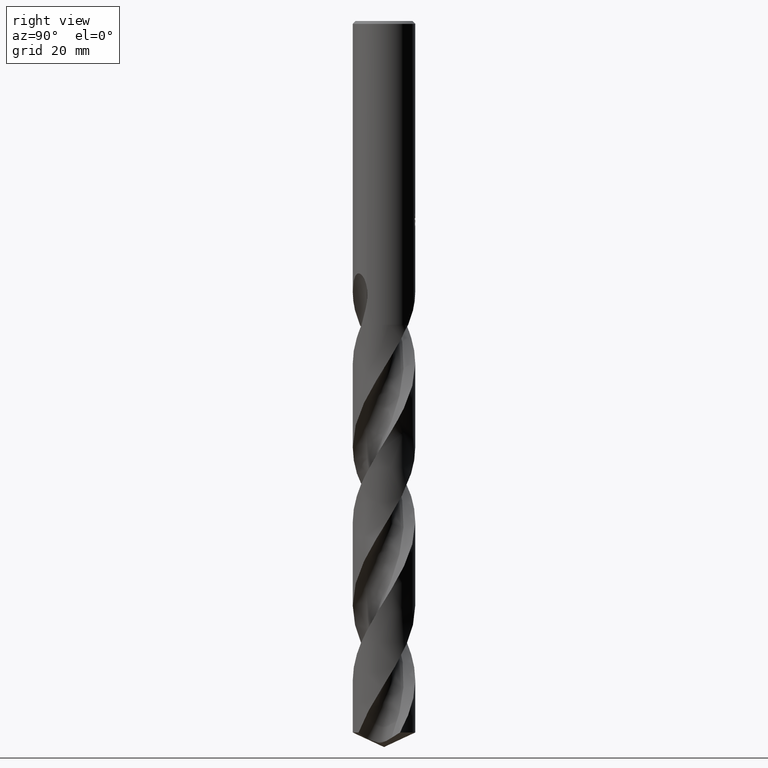
[diagram: clean part render]
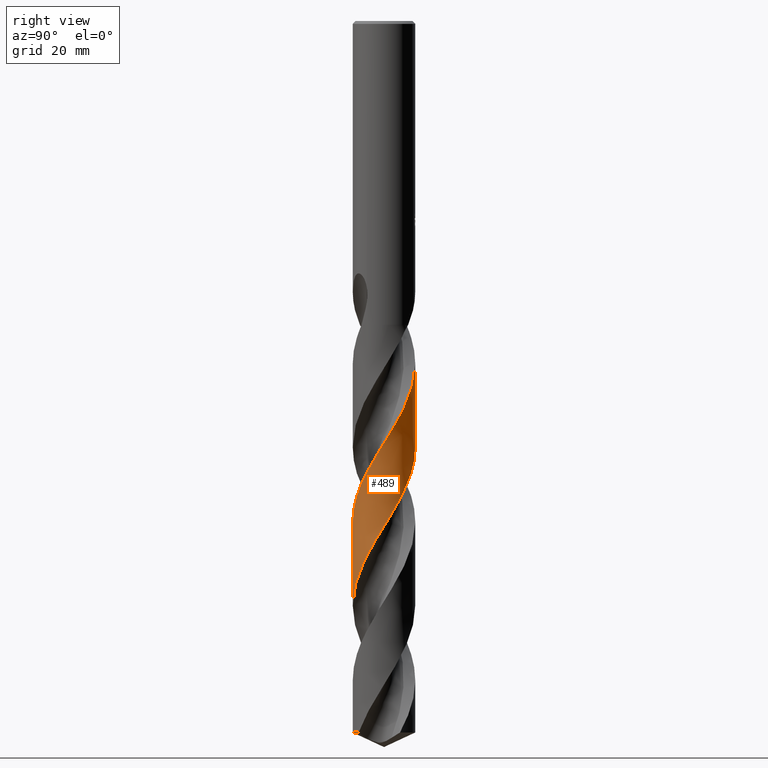
[diagram: same view with one face highlighted and labeled with its STEP entity id]
A machine part, right view. The second image highlights one B-rep face of the part: STEP entity #489.
In plain terms, the highlighted conical surface has half-angle 0 deg.
Its self-contained STEP definition (entity closure, byte-faithful):
#351=EDGE_CURVE('',#613,#685,#837,.T.);
#371=VERTEX_POINT('',#858);
#489=ADVANCED_FACE('',(#987),#988,.T.);
#563=EDGE_CURVE('',#707,#685,#1067,.T.);
#577=EDGE_CURVE('',#613,#371,#1082,.T.);
#613=VERTEX_POINT('',#1122);
#635=EDGE_CURVE('',#707,#371,#1147,.T.);
#685=VERTEX_POINT('',#1199);
#707=VERTEX_POINT('',#1223);
#837=B_SPLINE_CURVE_WITH_KNOTS('',3,(#2096,#2097,#2098,#2099,#2100,#2101,#2102,#2103,#2104,#2105,#2106,#2107,#2108,#2109,#2110,#2111,#2112,#2113,#2114,#2115,#2116,#2117,#2118,#2119,#2120,#2121,#2122,#2123,#2124,#2125,#2126,#2127,#2128,#2129,#2130,#2131,#2132,#2133,#2134,#2135,#2136,#2137,#2138,#2139,#2140,#2141,#2142,#2143,#2144,#2145,#2146,#2147,#2148,#2149,#2150,#2151,#2152,#2153,#2154,#2155,#2156,#2157,#2158,#2159,#2160,#2161,#2162,#2163,#2164,#2165,#2166,#2167,#2168,#2169,#2170,#2171,#2172,#2173,#2174,#2175,#2176,#2177,#2178,#2179,#2180,#2181,#2182,#2183,#2184,#2185,#2186,#2187,#2188,#2189,#2190,#2191,#2192,#2193,#2194,#2195,#2196,#2197,#2198,#2199,#2200,#2201,#2202,#2203,#2204,#2205,#2206,#2207,#2208,#2209,#2210,#2211,#2212,#2213,#2214,#2215,#2216,#2217,#2218,#2219,#2220,#2221,#2222,#2223,#2224,#2225,#2226,#2227,#2228,#2229,#2230,#2231,#2232,#2233,#2234,#2235,#2236,#2237,#2238,#2239,#2240,#2241,#2242,#2243,#2244,#2245,#2246,#2247,#2248,#2249,#2250,#2251,#2252,#2253),.UNSPECIFIED.,.F.,.F.,(4,2,2,2,2,2,2,2,2,2,2,2,2,2,2,2,2,2,2,2,2,2,2,2,2,2,2,2,2,2,2,2,2,2,2,2,2,2,2,2,2,2,2,2,2,2,2,2,2,2,2,2,2,2,2,2,2,2,2,2,2,2,2,2,2,2,2,2,2,2,2,2,2,2,2,2,2,2,4),(0.0,0.33079250803212,0.47388826276862,0.525126299226777,0.560457220997271,0.621862456829889,1.41913168242302,1.65246398237163,1.79168776453876,1.91557138446631,2.07175984837624,2.38634997627114,2.44822355900527,3.37165145099731,3.90930529366214,4.39123340762432,4.63767425564521,5.24841389897642,6.83965309799757,9.14841744682431,11.3629098963592,12.1507517249237,13.7017692926407,14.80832205884,17.0255939085607,18.1367226498274,20.3384720138087,21.4509537251053,22.5510916854605,24.4243922024361,26.6296174303579,27.7420284619005,28.8424078088941,30.6548529179135,32.8660755759365,33.9774977141512,36.1763218119235,37.2893434008521,38.3861128514043,40.3172545336863,41.4204086725534,43.1823510677158,43.7370772439113,44.7902620687031,46.9476584824271,47.9451157880602,50.0460970650543,51.1137369680455,53.2718497939801,54.2695762921687,56.579994957079,57.1562679229648,59.4634212333114,60.5565535683248,62.6612648061229,63.7250803679744,65.8794232170719,66.8792766262076,68.9781009482861,70.0473866655218,72.2040985870713,73.2022987365921,75.511953169869,76.088036202322,78.394423844435,79.4872039481365,81.5914374277203,82.5730727064379,84.4191000805045,86.0512246747107,87.4814311754534,88.1097031857498,88.6947312064875,90.8948347860314,92.5538813964964,93.8008787661073,94.2687722606396,95.0867701270505,97.5453496771807),.UNSPECIFIED.);
#858=CARTESIAN_POINT('',(7.42125690275208E-014,6.49993000508459,-88.6350102377183));
#987=FACE_OUTER_BOUND('',#5229,.T.);
#988=CONICAL_SURFACE('',#5230,6.49995,1.17967652960211E-006);
#1067=LINE('',#6197,#6198);
#1082=LINE('',#6221,#6222);
#1122=CARTESIAN_POINT('',(3.60238591493472E-015,6.49990953199373,-71.2801757833968));
#1147=B_SPLINE_CURVE_WITH_KNOTS('',3,(#6522,#6523,#6524,#6525,#6526,#6527,#6528,#6529,#6530,#6531,#6532,#6533,#6534,#6535,#6536,#6537,#6538,#6539,#6540,#6541,#6542,#6543,#6544,#6545,#6546,#6547,#6548,#6549,#6550,#6551,#6552,#6553,#6554,#6555,#6556,#6557,#6558,#6559,#6560,#6561,#6562,#6563,#6564,#6565,#6566,#6567,#6568,#6569,#6570,#6571,#6572,#6573,#6574,#6575,#6576,#6577,#6578,#6579,#6580,#6581,#6582,#6583,#6584,#6585,#6586,#6587,#6588,#6589,#6590,#6591,#6592,#6593,#6594,#6595,#6596,#6597,#6598,#6599,#6600,#6601,#6602,#6603,#6604,#6605,#6606,#6607,#6608,#6609,#6610,#6611,#6612,#6613,#6614,#6615,#6616,#6617,#6618,#6619,#6620,#6621,#6622,#6623,#6624,#6625,#6626,#6627,#6628,#6629,#6630,#6631,#6632,#6633,#6634,#6635,#6636,#6637,#6638,#6639,#6640,#6641,#6642,#6643,#6644,#6645,#6646,#6647,#6648,#6649,#6650,#6651,#6652,#6653,#6654,#6655,#6656,#6657,#6658,#6659,#6660,#6661,#6662,#6663,#6664,#6665),.UNSPECIFIED.,.F.,.F.,(4,2,2,2,2,2,2,2,2,2,2,2,2,2,2,2,2,2,2,2,2,2,2,2,2,2,2,2,2,2,2,2,2,2,2,2,2,2,2,2,2,2,2,2,2,2,2,2,2,2,2,2,2,2,2,2,2,2,2,2,2,2,2,2,2,2,2,2,2,2,2,4),(0.0,1.62132441846196,2.41007585636553,3.53007500042479,4.88741725184846,6.9039121955526,8.46617743514913,10.7296531993859,12.3443937262883,13.1133941374486,14.5625430527722,16.4256765496374,18.1228968380388,20.386472459647,21.5230164435783,23.1300389517819,24.7417095060267,26.349245855882,27.9610281157212,29.5686792314137,31.1805440823844,32.7881815592088,34.3999663194296,36.0081504266638,37.9026827310847,39.0301376192189,40.6186396593835,42.8847107138609,44.0212070359038,46.284035600863,47.4209194160412,48.5515026005488,50.1619188649125,50.9691729544409,51.7101604771442,54.4786402335096,54.6697036118996,57.749638430469,57.8458157502053,60.9617753238208,61.0616537588516,63.6722167746319,64.800921503958,66.248081252642,68.1406051696505,69.6614101797351,71.4158889193304,73.0416598020186,75.3064069046325,76.4434496395551,77.5753167245774,79.0302984244973,79.9357086929596,80.867709056088,82.4679536708044,84.2008766097862,86.8395977375489,86.8951964755862,90.2584483636107,92.8841602295508,94.6359893448057,95.1863823488813,95.9663162224129,96.9011824420138,97.3408759812528,97.3423029498683,97.4042507487023,97.448603977308,97.4943466382433,97.5630552236327,97.7025794578247,97.9233588608679),.UNSPECIFIED.);
#1199=CARTESIAN_POINT('',(1.46124231713493E-014,-6.49994837954793,-104.210859086855));
#1223=CARTESIAN_POINT('',(1.73383733930544E-015,-6.49996885319631,-121.566166142724));
#2096=CARTESIAN_POINT('',(-4.51793200972925,4.67300657415989,-63.205));
#2097=CARTESIAN_POINT('',(-4.47820924904769,4.7114112844519,-63.300422049613));
#2098=CARTESIAN_POINT('',(-4.43786501805923,4.74943903414382,-63.3958718407467));
#2099=CARTESIAN_POINT('',(-4.37898668517305,4.80351573840669,-63.532476277983));
#2100=CARTESIAN_POINT('',(-4.36108142964293,4.81977835733605,-63.5736751066633));
#2101=CARTESIAN_POINT('',(-4.33656123189556,4.84179912696366,-63.6295977255505));
#2102=CARTESIAN_POINT('',(-4.33007853952318,4.84759759899436,-63.6443361669632));
#2103=CARTESIAN_POINT('',(-4.31909384433874,4.85738320684318,-63.6692300332716));
#2104=CARTESIAN_POINT('',(-4.31460210335888,4.86137348958217,-63.6793869388249));
#2105=CARTESIAN_POINT('',(-4.30227903893947,4.87229022815813,-63.7071903066033));
#2106=CARTESIAN_POINT('',(-4.29443077154796,4.87920917654528,-63.7248292978437));
#2107=CARTESIAN_POINT('',(-4.1842909450226,4.9758343831775,-63.9713982047195));
#2108=CARTESIAN_POINT('',(-4.07951402505787,5.06221528933136,-64.1941356291011));
#2109=CARTESIAN_POINT('',(-3.93565935737802,5.1731031486729,-64.4854356771169));
#2110=CARTESIAN_POINT('',(-3.90276364015396,5.19796824183501,-64.5511547265547));
#2111=CARTESIAN_POINT('',(-3.84960149128962,5.23735639798783,-64.6560971068889));
#2112=CARTESIAN_POINT('',(-3.82961953549288,5.25198561642253,-64.6952634213648));
#2113=CARTESIAN_POINT('',(-3.79162310038691,5.27947022753001,-64.7692639294865));
#2114=CARTESIAN_POINT('',(-3.77364715488711,5.29233423592421,-64.804075198461));
#2115=CARTESIAN_POINT('',(-3.7328058206962,5.3212465872423,-64.8827659197748));
#2116=CARTESIAN_POINT('',(-3.7099070096625,5.33723693018766,-64.9266057541671));
#2117=CARTESIAN_POINT('',(-3.64050816352316,5.3850347823305,-65.0587645377703));
#2118=CARTESIAN_POINT('',(-3.59375797977791,5.41634534760756,-65.1468459401489));
#2119=CARTESIAN_POINT('',(-3.53735356603684,5.45307102537567,-65.2524922200646));
#2120=CARTESIAN_POINT('',(-3.52797518725493,5.45914376094757,-65.270038618721));
#2121=CARTESIAN_POINT('',(-3.3766257125512,5.55658114882703,-65.5531810178547));
#2122=CARTESIAN_POINT('',(-3.23236839293633,5.64163331416636,-65.8215750011124));
#2123=CARTESIAN_POINT('',(-3.00148722641167,5.76620679545184,-66.2450323032767));
#2124=CARTESIAN_POINT('',(-2.91563835888052,5.81008313974528,-66.4012164939116));
#2125=CARTESIAN_POINT('',(-2.75130928554873,5.8895240930184,-66.6971571243436));
#2126=CARTESIAN_POINT('',(-2.67286459386279,5.92553832974578,-66.837162297818));
#2127=CARTESIAN_POINT('',(-2.55321876655603,5.97760671942575,-67.0485554485852));
#2128=CARTESIAN_POINT('',(-2.51253290545734,5.99482216330119,-67.120073573071));
#2129=CARTESIAN_POINT('',(-2.37032161963556,6.05329180622836,-67.3687309735352));
#2130=CARTESIAN_POINT('',(-2.26787941386869,6.09241645686161,-67.5455158977811));
#2131=CARTESIAN_POINT('',(-1.89470956530301,6.22419807194945,-68.183385640119));
#2132=CARTESIAN_POINT('',(-1.61904218167601,6.30153323207231,-68.642975228648));
#2133=CARTESIAN_POINT('',(-0.93295165976444,6.44598164870999,-69.7730202545286));
#2134=CARTESIAN_POINT('',(-0.519642583129168,6.49237235389576,-70.4421270939705));
#2135=CARTESIAN_POINT('',(0.293049285771082,6.50548235111249,-71.7528559639059));
#2136=CARTESIAN_POINT('',(0.690731633406519,6.47535019809648,-72.3930059916239));
#2137=CARTESIAN_POINT('',(1.22282397456371,6.38542153792151,-73.2631246008798));
#2138=CARTESIAN_POINT('',(1.36164475087788,6.35726635624635,-73.4913766556578));
#2139=CARTESIAN_POINT('',(1.77070993636874,6.26028587422121,-74.1691986249619));
#2140=CARTESIAN_POINT('',(2.03749303499473,6.17860341262273,-74.6183343533359));
#2141=CARTESIAN_POINT('',(2.48409560962169,6.00979829327322,-75.3886693547463));
#2142=CARTESIAN_POINT('',(2.66676549968853,5.93100369350237,-75.7092671223125));
#2143=CARTESIAN_POINT('',(3.20385195611488,5.66948324505061,-76.6725812863614));
#2144=CARTESIAN_POINT('',(3.54530106082651,5.46246263504793,-77.3134747164557));
#2145=CARTESIAN_POINT('',(4.02612191087729,5.10677369492494,-78.2781896097003));
#2146=CARTESIAN_POINT('',(4.18110167559204,4.98068381669524,-78.6000759428891));
#2147=CARTESIAN_POINT('',(4.62519702901323,4.58400670821678,-79.5601897959991));
#2148=CARTESIAN_POINT('',(4.8956057359983,4.29400922831823,-80.1969232849383));
#2149=CARTESIAN_POINT('',(5.2603624158235,3.82328649323522,-81.15755448766));
#2150=CARTESIAN_POINT('',(5.37546744891283,3.65968793093988,-81.4798215613483));
#2151=CARTESIAN_POINT('',(5.58907217105243,3.32420903850876,-82.1210614403692));
#2152=CARTESIAN_POINT('',(5.68759749152683,3.15266819863,-82.4395662894173));
#2153=CARTESIAN_POINT('',(5.9323278770157,2.67765310552361,-83.3013941112751));
#2154=CARTESIAN_POINT('',(6.06304711428619,2.3668240892505,-83.8438372040314));
#2155=CARTESIAN_POINT('',(6.29394896635767,1.67103550411955,-85.0259137535262));
#2156=CARTESIAN_POINT('',(6.38410489602495,1.28424315206482,-85.6636210918557));
#2157=CARTESIAN_POINT('',(6.46589374075651,0.693711784804082,-86.6252760607534));
#2158=CARTESIAN_POINT('',(6.48417367212658,0.494511964636462,-86.9475362230463));
#2159=CARTESIAN_POINT('',(6.50221201119888,0.0971534830431719,-87.5888541654553));
#2160=CARTESIAN_POINT('',(6.5021567504701,-0.100725024961158,-87.9074422726266));
#2161=CARTESIAN_POINT('',(6.47813508519022,-0.623665984119544,-88.751739911042));
#2162=CARTESIAN_POINT('',(6.43874768588031,-0.947504037632891,-89.2766505145138));
#2163=CARTESIAN_POINT('',(6.29776515445119,-1.6568795888424,-90.4429044034519));
#2164=CARTESIAN_POINT('',(6.18470242000287,-2.03874363616722,-91.0822920895464));
#2165=CARTESIAN_POINT('',(5.96352206316186,-2.59334455751862,-92.0454580350169));
#2166=CARTESIAN_POINT('',(5.88101388515172,-2.77538090744567,-92.3674607549553));
#2167=CARTESIAN_POINT('',(5.61064223653308,-3.30546342020458,-93.3269078700253));
#2168=CARTESIAN_POINT('',(5.39932746864029,-3.64040912305558,-93.9628805307252));
#2169=CARTESIAN_POINT('',(5.03727400999781,-4.11279290223968,-94.9229029408057));
#2170=CARTESIAN_POINT('',(4.9083137775171,-4.26587427621859,-95.24534789482));
#2171=CARTESIAN_POINT('',(4.63861683005924,-4.55755532534321,-95.8858261968168));
#2172=CARTESIAN_POINT('',(4.49826493609519,-4.69613386337274,-96.2033990395477));
#2173=CARTESIAN_POINT('',(4.09404693749959,-5.06048005279826,-97.0811224707241));
#2174=CARTESIAN_POINT('',(3.81800800091798,-5.27186542009443,-97.640307626093));
#2175=CARTESIAN_POINT('',(3.35978570325315,-5.56780122168335,-98.5198250957292));
#2176=CARTESIAN_POINT('',(3.18837401588291,-5.66770092368226,-98.8392519575933));
#2177=CARTESIAN_POINT('',(2.73205269464137,-5.90638999578373,-99.6697891647566));
#2178=CARTESIAN_POINT('',(2.44105483926364,-6.03248185987479,-100.180171626634));
#2179=CARTESIAN_POINT('',(2.04786703323284,-6.16972138301262,-100.851725781763));
#2180=CARTESIAN_POINT('',(1.95296685668716,-6.20041510712983,-101.012498650166));
#2181=CARTESIAN_POINT('',(1.6759314232327,-6.28302443009826,-101.478569128038));
#2182=CARTESIAN_POINT('',(1.4922286773059,-6.32916880377038,-101.783598533842));
#2183=CARTESIAN_POINT('',(0.926956305675664,-6.44518551075548,-102.714369913367));
#2184=CARTESIAN_POINT('',(0.540818732173775,-6.48901415224366,-103.338786915153));
#2185=CARTESIAN_POINT('',(-0.0262812366547739,-6.50236913570259,-104.253292042491));
#2186=CARTESIAN_POINT('',(-0.205640481346561,-6.49916835216901,-104.542218529823));
#2187=CARTESIAN_POINT('',(-0.761585642583152,-6.46621556080723,-105.440529014198));
#2188=CARTESIAN_POINT('',(-1.13597106998695,-6.4110560385998,-106.04874003844));
#2189=CARTESIAN_POINT('',(-1.6902635733049,-6.27927008754935,-106.967296557306));
#2190=CARTESIAN_POINT('',(-1.87493356707258,-6.22662258662289,-107.276540076236));
#2191=CARTESIAN_POINT('',(-2.42496289061721,-6.0431306230788,-108.211811756564));
#2192=CARTESIAN_POINT('',(-2.78129846451203,-5.88764647823201,-108.836502690024));
#2193=CARTESIAN_POINT('',(-3.27905644906419,-5.61510388402071,-109.751388513212));
#2194=CARTESIAN_POINT('',(-3.43275866710273,-5.52247714465176,-110.040428362497));
#2195=CARTESIAN_POINT('',(-3.92896470385864,-5.19472466020654,-110.999628869131));
#2196=CARTESIAN_POINT('',(-4.25285745096513,-4.93308046346593,-111.668203267482));
#2197=CARTESIAN_POINT('',(-4.62361926486464,-4.56972002274001,-112.50509164792));
#2198=CARTESIAN_POINT('',(-4.69587835609325,-4.49543330137984,-112.67209733135));
#2199=CARTESIAN_POINT('',(-5.04837015080524,-4.11527692924874,-113.508155885222));
#2200=CARTESIAN_POINT('',(-5.30069058749028,-3.78474774548236,-114.176097573098));
#2201=CARTESIAN_POINT('',(-5.62360440098734,-3.2654581573834,-115.161992627879));
#2202=CARTESIAN_POINT('',(-5.71977005259311,-3.09392234413965,-115.478655096116));
#2203=CARTESIAN_POINT('',(-5.97789602310363,-2.58020480871137,-116.405997179443));
#2204=CARTESIAN_POINT('',(-6.11797104654069,-2.2278340684858,-117.015421504216));
#2205=CARTESIAN_POINT('',(-6.28149936869276,-1.68193691372721,-117.934156948009));
#2206=CARTESIAN_POINT('',(-6.32827406619552,-1.49635399493896,-118.242360911549));
#2207=CARTESIAN_POINT('',(-6.44479916538731,-0.92959930157818,-119.175635996825));
#2208=CARTESIAN_POINT('',(-6.48875083194425,-0.543901244536292,-119.79937829902));
#2209=CARTESIAN_POINT('',(-6.50241359782615,0.0232613541983576,-120.713994157563));
#2210=CARTESIAN_POINT('',(-6.49928080363334,0.203112951178098,-121.003708532137));
#2211=CARTESIAN_POINT('',(-6.46648899943941,0.759296312349205,-121.902384080193));
#2212=CARTESIAN_POINT('',(-6.41150799498441,1.1334412929581,-122.510172989082));
#2213=CARTESIAN_POINT('',(-6.27994080715117,1.68788564202067,-123.428883983085));
#2214=CARTESIAN_POINT('',(-6.22725971912611,1.87292065015193,-123.738705111274));
#2215=CARTESIAN_POINT('',(-6.04384110163063,2.4232240026867,-124.674355849484));
#2216=CARTESIAN_POINT('',(-5.88851262687933,2.77949242859346,-125.298848047518));
#2217=CARTESIAN_POINT('',(-5.61612224519701,3.27735841587641,-126.213766413622));
#2218=CARTESIAN_POINT('',(-5.52346581422967,3.43121198738357,-126.503038326297));
#2219=CARTESIAN_POINT('',(-5.19576229338282,3.92762461555031,-127.462470464802));
#2220=CARTESIAN_POINT('',(-4.93420199129227,4.2515859507864,-128.13104386722));
#2221=CARTESIAN_POINT('',(-4.57093742452902,4.62244305357994,-128.967931127267));
#2222=CARTESIAN_POINT('',(-4.49666931238818,4.69472168800349,-129.134936716432));
#2223=CARTESIAN_POINT('',(-4.11660435156766,5.04731281558435,-129.970993429986));
#2224=CARTESIAN_POINT('',(-3.78614082498538,5.29971945928414,-130.638933677611));
#2225=CARTESIAN_POINT('',(-3.26693385613252,5.62276976556494,-131.624829393228));
#2226=CARTESIAN_POINT('',(-3.09542137990245,5.71898108669464,-131.941494274525));
#2227=CARTESIAN_POINT('',(-2.58173356141185,5.97725959182197,-132.868900886004));
#2228=CARTESIAN_POINT('',(-2.22936057757258,6.11743808693931,-133.478386686089));
#2229=CARTESIAN_POINT('',(-1.69756567858994,6.27688238311212,-134.373449097535));
#2230=CARTESIAN_POINT('',(-1.52643043999759,6.32067866587278,-134.657950785671));
#2231=CARTESIAN_POINT('',(-1.02899585797341,6.42660246410142,-135.478241943125));
#2232=CARTESIAN_POINT('',(-0.699380178331864,6.47077915022262,-136.013234160291));
#2233=CARTESIAN_POINT('',(-0.0746400938127419,6.50618779376437,-137.022163496447));
#2234=CARTESIAN_POINT('',(0.219257539318458,6.50291695015989,-137.494827136275));
#2235=CARTESIAN_POINT('',(0.768304287690777,6.459545205283,-138.383265528535));
#2236=CARTESIAN_POINT('',(1.02333843454689,6.42408289963943,-138.797907286771));
#2237=CARTESIAN_POINT('',(1.38646571370095,6.35140589367753,-139.395045754805));
#2238=CARTESIAN_POINT('',(1.49670729978253,6.32633526782895,-139.577254315599));
#2239=CARTESIAN_POINT('',(1.70824741305071,6.27238775676256,-139.929196381831));
#2240=CARTESIAN_POINT('',(1.8095856102596,6.24390544902471,-140.098826666221));
#2241=CARTESIAN_POINT('',(2.28848959547516,6.09666730986017,-140.906820888923));
#2242=CARTESIAN_POINT('',(2.6554325616893,5.94603082168635,-141.544271594639));
#2243=CARTESIAN_POINT('',(3.27106130302741,5.62487181557293,-142.663838823812));
#2244=CARTESIAN_POINT('',(3.52586096247834,5.46875580916221,-143.144476904592));
#2245=CARTESIAN_POINT('',(3.95174960637745,5.16564891089652,-143.987633622655));
#2246=CARTESIAN_POINT('',(4.12767675866428,5.0261892587441,-144.349205224382));
#2247=CARTESIAN_POINT('',(4.35924941271981,4.8222386110752,-144.84669739375));
#2248=CARTESIAN_POINT('',(4.4213481511562,4.76536721906594,-144.982414414131));
#2249=CARTESIAN_POINT('',(4.58893517438874,4.60579024612562,-145.355438281258));
#2250=CARTESIAN_POINT('',(4.6920356387172,4.5007130861972,-145.592554885714));
#2251=CARTESIAN_POINT('',(5.09032882971376,4.06621913615608,-146.543287555001));
#2252=CARTESIAN_POINT('',(5.35520415949061,3.71046234388611,-147.25564547446));
#2253=CARTESIAN_POINT('',(5.5819054693998,3.33051517496688,-147.969000221993));
#5229=EDGE_LOOP('',(#7347,#7348,#7349,#7350));
#5230=AXIS2_PLACEMENT_3D('',#7351,#7352,#7353);
#6197=CARTESIAN_POINT('',(8.03137110736103E-016,-6.49995,-105.584500110996));
#6198=VECTOR('',#7418,1.0);
#6221=CARTESIAN_POINT('',(-7.8883890316945E-016,6.49995,-105.584500110996));
#6222=VECTOR('',#7436,1.0);
#6522=CARTESIAN_POINT('',(-3.79022490556998,5.28054875606666,-147.969000221992));
#6523=CARTESIAN_POINT('',(-4.02174588524533,5.11436903783691,-147.509806011702));
#6524=CARTESIAN_POINT('',(-4.2421585960449,4.93309280578851,-147.052117503617));
#6525=CARTESIAN_POINT('',(-4.55115181313916,4.64286985410686,-146.369768361797));
#6526=CARTESIAN_POINT('',(-4.64911381887776,4.54476483127317,-146.146552757022));
#6527=CARTESIAN_POINT('',(-4.87820249691188,4.30020533657716,-145.605743691136));
#6528=CARTESIAN_POINT('',(-5.00593672946758,4.15080922510441,-145.287659208206));
#6529=CARTESIAN_POINT('',(-5.27328991236287,3.80777417848698,-144.585654676888));
#6530=CARTESIAN_POINT('',(-5.40942082265137,3.61179213872037,-144.20193105909));
#6531=CARTESIAN_POINT('',(-5.72043833275576,3.10679412070669,-143.246429248695));
#6532=CARTESIAN_POINT('',(-5.88126101412448,2.79037950799361,-142.674392103009));
#6533=CARTESIAN_POINT('',(-6.11947561078711,2.20845376294569,-141.660692742575));
#6534=CARTESIAN_POINT('',(-6.20727702244539,1.94807159533027,-141.219457834113));
#6535=CARTESIAN_POINT('',(-6.38134242983501,1.29868030523213,-140.135947837172));
#6536=CARTESIAN_POINT('',(-6.44884624355124,0.905857260426902,-139.493759516755));
#6537=CARTESIAN_POINT('',(-6.50225082212621,0.226192607438663,-138.39554320754));
#6538=CARTESIAN_POINT('',(-6.50590368003312,-0.0576768463370122,-137.939580407498));
#6539=CARTESIAN_POINT('',(-6.48398794989093,-0.475331427812985,-137.264080822804));
#6540=CARTESIAN_POINT('',(-6.47271553463188,-0.609959742806077,-137.045670690396));
#6541=CARTESIAN_POINT('',(-6.42808144661616,-0.997222826519644,-136.416624241191));
#6542=CARTESIAN_POINT('',(-6.38406057336737,-1.24844237151856,-136.00673533637));
#6543=CARTESIAN_POINT('',(-6.24986628053436,-1.81561311424386,-135.067908475218));
#6544=CARTESIAN_POINT('',(-6.15039910925124,-2.12828025814061,-134.538857290399));
#6545=CARTESIAN_POINT('',(-5.91631790653315,-2.70848887982608,-133.529617611429));
#6546=CARTESIAN_POINT('',(-5.78579644167707,-2.97714570112703,-133.050187694943));
#6547=CARTESIAN_POINT('',(-5.43906462321539,-3.58116675069437,-131.927817558169));
#6548=CARTESIAN_POINT('',(-5.20964926844653,-3.90740517831596,-131.285283948232));
#6549=CARTESIAN_POINT('',(-4.82223017090203,-4.36300223068081,-130.321922990445));
#6550=CARTESIAN_POINT('',(-4.68581481380976,-4.50918764147548,-130.000364045507));
#6551=CARTESIAN_POINT('',(-4.34091202399645,-4.84623406484318,-129.222838058633));
#6552=CARTESIAN_POINT('',(-4.12632968721092,-5.03019956516191,-128.766336452581));
#6553=CARTESIAN_POINT('',(-3.67372026288333,-5.36970502648298,-127.854157377866));
#6554=CARTESIAN_POINT('',(-3.43622646007369,-5.52469801253624,-127.398816735846));
#6555=CARTESIAN_POINT('',(-2.943165862999,-5.80235210201324,-126.486542578069));
#6556=CARTESIAN_POINT('',(-2.68828305105996,-5.92474902870481,-126.029945874701));
#6557=CARTESIAN_POINT('',(-2.16326816332104,-6.13597555901718,-125.117640012603));
#6558=CARTESIAN_POINT('',(-1.8937940722682,-6.22442401225353,-124.662291072734));
#6559=CARTESIAN_POINT('',(-1.3457334883237,-6.36541331892217,-123.749996906723));
#6560=CARTESIAN_POINT('',(-1.0678881338917,-6.41787249017372,-123.293386628244));
#6561=CARTESIAN_POINT('',(-0.506157147457606,-6.48642293194962,-122.381066227492));
#6562=CARTESIAN_POINT('',(-0.222997039919584,-6.50231744010482,-121.925714701718));
#6563=CARTESIAN_POINT('',(0.342836577762906,-6.49706767928281,-121.013436171776));
#6564=CARTESIAN_POINT('',(0.62476753292718,-6.4760383758687,-120.556821899707));
#6565=CARTESIAN_POINT('',(1.18506730175273,-6.39729797785668,-119.644562819246));
#6566=CARTESIAN_POINT('',(1.46270219784317,-6.33958281183248,-119.189257209339));
#6567=CARTESIAN_POINT('',(2.00808488641143,-6.18845949323002,-118.276926303404));
#6568=CARTESIAN_POINT('',(2.2751283923447,-6.09534321165321,-117.820222944274));
#6569=CARTESIAN_POINT('',(2.84195403462262,-5.85522665456574,-116.827776915157));
#6570=CARTESIAN_POINT('',(3.13802627951113,-5.70202035858163,-116.293202440374));
#6571=CARTESIAN_POINT('',(3.58935611783675,-5.42265983918296,-115.436856310296));
#6572=CARTESIAN_POINT('',(3.75282485186743,-5.31084126967926,-115.116719199947));
#6573=CARTESIAN_POINT('',(4.13393042846312,-5.02374207544865,-114.3470392938));
#6574=CARTESIAN_POINT('',(4.3458593410904,-4.84158840033589,-113.898252105871));
#6575=CARTESIAN_POINT('',(4.83027063841803,-4.36768439774803,-112.806287486031));
#6576=CARTESIAN_POINT('',(5.08877569053454,-4.0635655406174,-112.163074974501));
#6577=CARTESIAN_POINT('',(5.43278687520765,-3.57410040528113,-111.199214148253));
#6578=CARTESIAN_POINT('',(5.54007123711742,-3.40542872604488,-110.877747172361));
#6579=CARTESIAN_POINT('',(5.83717110423203,-2.88704648509159,-109.914695501659));
#6580=CARTESIAN_POINT('',(6.00287952209031,-2.5245200620969,-109.272614103453));
#6581=CARTESIAN_POINT('',(6.20054222144534,-1.96026555179841,-108.309628529184));
#6582=CARTESIAN_POINT('',(6.25787395286989,-1.76870226050434,-107.988053177356));
#6583=CARTESIAN_POINT('',(6.35440933177697,-1.38214513724642,-107.345588543835));
#6584=CARTESIAN_POINT('',(6.39364520646463,-1.18745865703113,-107.024612368615));
#6585=CARTESIAN_POINT('',(6.46702422134539,-0.711946683458153,-106.248105139826));
#6586=CARTESIAN_POINT('',(6.4918911375199,-0.429894565890197,-105.793339602523));
#6587=CARTESIAN_POINT('',(6.50149562028139,-0.00509671411928403,-105.10881288306));
#6588=CARTESIAN_POINT('',(6.50005531333533,0.136701211337064,-104.880370737834));
#6589=CARTESIAN_POINT('',(6.48842520884066,0.408140336788258,-104.44175228123));
#6590=CARTESIAN_POINT('',(6.4789697325616,0.537763831405839,-104.231555898263));
#6591=CARTESIAN_POINT('',(6.41575863689359,1.15039042683662,-103.237256958935));
#6592=CARTESIAN_POINT('',(6.31190394987219,1.62626544962882,-102.459918606159));
#6593=CARTESIAN_POINT('',(6.14539474937518,2.11767197443356,-101.621347744293));
#6594=CARTESIAN_POINT('',(6.13440488921518,2.14929979114544,-101.567209093512));
#6595=CARTESIAN_POINT('',(5.94177788667688,2.69012373395156,-100.639522336967));
#6596=CARTESIAN_POINT('',(5.69767714004291,3.17452527583033,-99.775714120013));
#6597=CARTESIAN_POINT('',(5.38713493727799,3.63707422153316,-98.875133250012));
#6598=CARTESIAN_POINT('',(5.3776797341597,3.65103995739655,-98.8478651366185));
#6599=CARTESIAN_POINT('',(5.05954238532257,4.11701730221144,-97.9359295754181));
#6600=CARTESIAN_POINT('',(4.69520056654824,4.5280915629523,-97.0613710132827));
#6601=CARTESIAN_POINT('',(4.27054469820274,4.90020007711275,-96.1486575606468));
#6602=CARTESIAN_POINT('',(4.25732077007899,4.91169340322961,-96.1203253067793));
#6603=CARTESIAN_POINT('',(3.89696761536181,5.22233820372945,-95.3512053377132));
#6604=CARTESIAN_POINT('',(3.51903874316527,5.48416885724548,-94.6164252502253));
#6605=CARTESIAN_POINT('',(2.9422404068175,5.79928858617571,-93.5562956522913));
#6606=CARTESIAN_POINT('',(2.7639948132832,5.88632524569654,-93.2356607799115));
#6607=CARTESIAN_POINT('',(2.3486364959868,6.06611183443535,-92.5054081856718));
#6608=CARTESIAN_POINT('',(2.10942728532146,6.15339478551864,-92.0962098788952));
#6609=CARTESIAN_POINT('',(1.54665236844341,6.3220115447761,-91.149901707673));
#6610=CARTESIAN_POINT('',(1.22107066238932,6.39286072872291,-90.6126330933786));
#6611=CARTESIAN_POINT('',(0.627034284502759,6.47513155215352,-89.6453307121898));
#6612=CARTESIAN_POINT('',(0.360266777504736,6.49544485549152,-89.2155655162813));
#6613=CARTESIAN_POINT('',(-0.215537776641197,6.50367468809292,-88.2877017379651));
#6614=CARTESIAN_POINT('',(-0.523691516834058,6.48612370952243,-87.7895420198387));
#6615=CARTESIAN_POINT('',(-1.11259517491472,6.41036248011653,-86.8318748494655));
#6616=CARTESIAN_POINT('',(-1.39318894042528,6.35529032255216,-86.3727420756772));
#6617=CARTESIAN_POINT('',(-2.05398846791632,6.179691368573,-85.2708104320087));
#6618=CARTESIAN_POINT('',(-2.42844188186782,6.04236999194361,-84.6282720459106));
#6619=CARTESIAN_POINT('',(-2.96869644059311,5.7858289758139,-83.6649120111184));
#6620=CARTESIAN_POINT('',(-3.1451645568968,5.69182366881608,-83.3433693816799));
#6621=CARTESIAN_POINT('',(-3.48798230562795,5.48839902558704,-82.7006768859765));
#6622=CARTESIAN_POINT('',(-3.65411003907995,5.37921037370561,-82.3794384779087));
#6623=CARTESIAN_POINT('',(-4.02155107941855,5.11285299744527,-81.6468741427918));
#6624=CARTESIAN_POINT('',(-4.21936620202614,4.95088689614906,-81.2359391278845));
#6625=CARTESIAN_POINT('',(-4.52420058984828,4.66967701510634,-80.5679445152925));
#6626=CARTESIAN_POINT('',(-4.63705187895603,4.55762564880367,-80.3119064055939));
#6627=CARTESIAN_POINT('',(-4.8573612743168,4.3222377741612,-79.7916461287933));
#6628=CARTESIAN_POINT('',(-4.96448471455522,4.19875818818177,-79.527304190999));
#6629=CARTESIAN_POINT('',(-5.24271331485919,3.8524919490592,-78.8103318114452));
#6630=CARTESIAN_POINT('',(-5.40428837019767,3.62237555012067,-78.3586551366687));
#6631=CARTESIAN_POINT('',(-5.7089426985658,3.12242535813428,-77.415469004806));
#6632=CARTESIAN_POINT('',(-5.84878291038235,2.85185087131215,-76.9241637821565));
#6633=CARTESIAN_POINT('',(-6.15230515559904,2.14762264847288,-75.6870957274494));
#6634=CARTESIAN_POINT('',(-6.28941153368466,1.7045773882405,-74.9464812627417));
#6635=CARTESIAN_POINT('',(-6.38021268227434,1.24171225367607,-74.1836464223131));
#6636=CARTESIAN_POINT('',(-6.38206409299303,1.23216114048489,-74.1679100699887));
#6637=CARTESIAN_POINT('',(-6.49476852815505,0.643655952347942,-73.1989022371021));
#6638=CARTESIAN_POINT('',(-6.52645912196894,0.051691141921588,-72.2556549760397));
#6639=CARTESIAN_POINT('',(-6.43966797313787,-0.99594271914141,-70.560095303776));
#6640=CARTESIAN_POINT('',(-6.35288497391912,-1.44972936355119,-69.8157986350281));
#6641=CARTESIAN_POINT('',(-6.12960690496066,-2.18428409355883,-68.5754853670099));
#6642=CARTESIAN_POINT('',(-6.01852839202617,-2.47484533938698,-68.0759025793235));
#6643=CARTESIAN_POINT('',(-5.84319140655442,-2.84879421146471,-67.4242049795303));
#6644=CARTESIAN_POINT('',(-5.80049014623212,-2.93473626807664,-67.2743326507126));
#6645=CARTESIAN_POINT('',(-5.69040068742953,-3.14441960454384,-66.8996517959311));
#6646=CARTESIAN_POINT('',(-5.62281613510165,-3.26357203336356,-66.6797156860082));
#6647=CARTESIAN_POINT('',(-5.46858279847593,-3.51703168726734,-66.1915548995044));
#6648=CARTESIAN_POINT('',(-5.38182276214552,-3.64803811318338,-65.9254623059806));
#6649=CARTESIAN_POINT('',(-5.25111580585336,-3.83141061242654,-65.5282093305608));
#6650=CARTESIAN_POINT('',(-5.20898583793937,-3.88845417356377,-65.4006983604346));
#6651=CARTESIAN_POINT('',(-5.1664802563642,-3.94413660980086,-65.2719698097855));
#6652=CARTESIAN_POINT('',(-5.1651584994178,-3.94586750823731,-65.2679695575043));
#6653=CARTESIAN_POINT('',(-5.1382838003422,-3.9810352748525,-65.1867580852814));
#6654=CARTESIAN_POINT('',(-5.11110182834638,-4.01589560666896,-65.108017935145));
#6655=CARTESIAN_POINT('',(-5.06267414044828,-4.07665410799893,-64.9737589872551));
#6656=CARTESIAN_POINT('',(-5.04196231620832,-4.10225092162272,-64.918072718014));
#6657=CARTESIAN_POINT('',(-4.99878209169716,-4.15476759680634,-64.8055486619854));
#6658=CARTESIAN_POINT('',(-4.97630050901603,-4.18167757075095,-64.7487856126577));
#6659=CARTESIAN_POINT('',(-4.91855627213117,-4.24963432023852,-64.6075824820566));
#6660=CARTESIAN_POINT('',(-4.88257958656343,-4.290954125038,-64.5236424040141));
#6661=CARTESIAN_POINT('',(-4.76918716804085,-4.41775522909808,-64.2713942210812));
#6662=CARTESIAN_POINT('',(-4.68775554900833,-4.50433231952867,-64.1063319321814));
#6663=CARTESIAN_POINT('',(-4.46173949966722,-4.73075233170001,-63.688354150887));
#6664=CARTESIAN_POINT('',(-4.30948789555498,-4.87076244701014,-63.4430356679691));
#6665=CARTESIAN_POINT('',(-4.14185932743565,-5.00936137630458,-63.205));
#7347=ORIENTED_EDGE('',*,*,#577,.F.);
#7348=ORIENTED_EDGE('',*,*,#351,.T.);
#7349=ORIENTED_EDGE('',*,*,#563,.F.);
#7350=ORIENTED_EDGE('',*,*,#635,.T.);
#7351=CARTESIAN_POINT('',(0.0,0.0,-105.584500110996));
#7352=DIRECTION('',(0.0,-0.0,-1.0));
#7353=DIRECTION('',(0.0,1.0,0.0));
#7418=DIRECTION('',(-1.44463937360554E-022,1.17967652960184E-006,0.999999999999304));
#7436=DIRECTION('',(-1.44463937360554E-022,1.17967652960184E-006,-0.999999999999304));